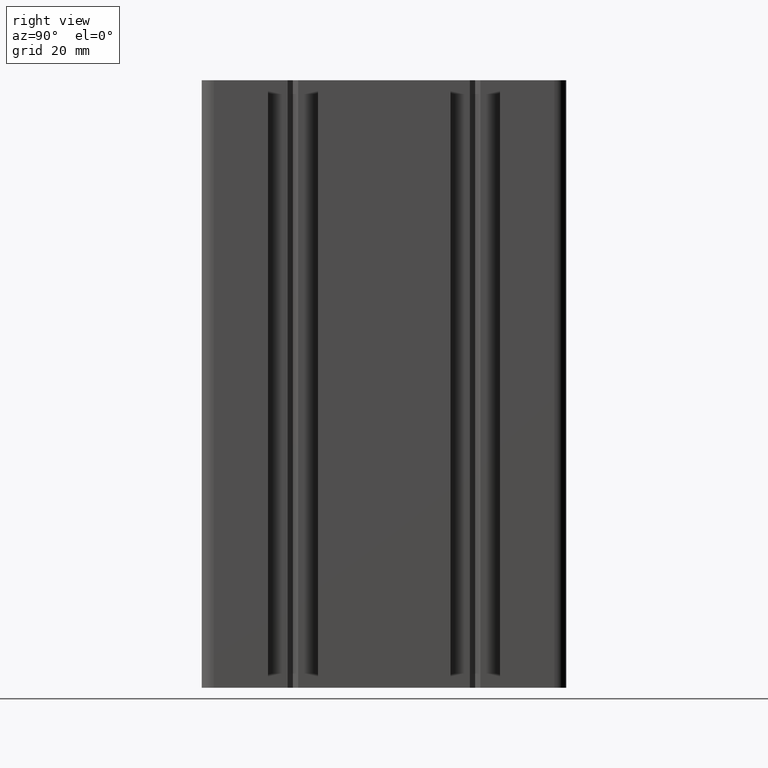
[diagram: clean part render]
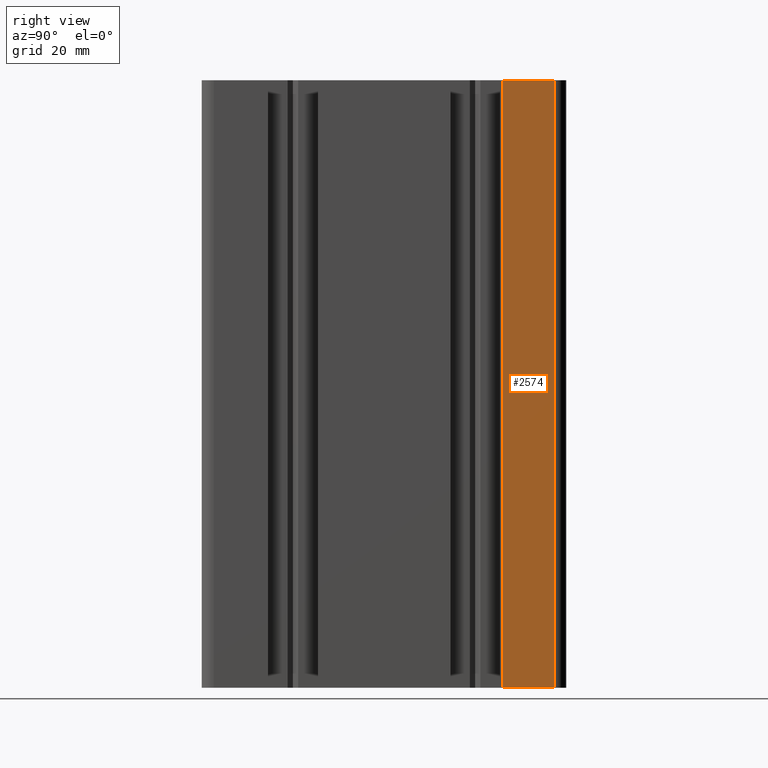
[diagram: same view with one face highlighted and labeled with its STEP entity id]
A machine part, right view. The second image highlights one B-rep face of the part: STEP entity #2574.
In plain terms, the highlighted planar face has unit normal (-1, 0, 0).
Its self-contained STEP definition (entity closure, byte-faithful):
#804 = VERTEX_POINT ( 'NONE', #4398 ) ;
#844 = EDGE_CURVE ( 'NONE', #804, #846, #4537, .T. ) ;
#846 = VERTEX_POINT ( 'NONE', #4532 ) ;
#1294 = EDGE_CURVE ( 'NONE', #1345, #1360, #5300, .T. ) ;
#1345 = VERTEX_POINT ( 'NONE', #5389 ) ;
#1360 = VERTEX_POINT ( 'NONE', #5414 ) ;
#2573 = EDGE_CURVE ( 'NONE', #846, #1360, #7375, .T. ) ;
#2574 = ADVANCED_FACE ( 'NONE', ( #7363 ), #7330, .F. ) ;
#2575 = ORIENTED_EDGE ( 'NONE', *, *, #1294, .T. ) ;
#2577 = ORIENTED_EDGE ( 'NONE', *, *, #844, .F. ) ;
#2587 = EDGE_LOOP ( 'NONE', ( #2575, #2589, #2577, #2624 ) ) ;
#2589 = ORIENTED_EDGE ( 'NONE', *, *, #2573, .F. ) ;
#2624 = ORIENTED_EDGE ( 'NONE', *, *, #2639, .T. ) ;
#2639 = EDGE_CURVE ( 'NONE', #804, #1345, #7480, .T. ) ;
#4398 = CARTESIAN_POINT ( 'NONE',  ( 15.00000000000000000, 19.50000000000001100, 100.0000000000000000 ) ) ;
#4532 = CARTESIAN_POINT ( 'NONE',  ( 15.00000000000001100, 27.99999999999998900, 100.0000000000000000 ) ) ;
#4534 = DIRECTION ( 'NONE',  ( 1.428595803745609100E-015, 1.000000000000000000, -0.0000000000000000000 ) ) ;
#4535 = VECTOR ( 'NONE', #4534, 1000.000000000000000 ) ;
#4536 = CARTESIAN_POINT ( 'NONE',  ( 15.00000000000001200, 27.99999999999998900, 100.0000000000000000 ) ) ;
#4537 = LINE ( 'NONE', #4536, #4535 ) ;
#5300 = LINE ( 'NONE', #5346, #5345 ) ;
#5344 = DIRECTION ( 'NONE',  ( 1.428595803745609100E-015, 1.000000000000000000, -0.0000000000000000000 ) ) ;
#5345 = VECTOR ( 'NONE', #5344, 1000.000000000000000 ) ;
#5346 = CARTESIAN_POINT ( 'NONE',  ( 15.00000000000001200, 27.99999999999998900, 0.0000000000000000000 ) ) ;
#5389 = CARTESIAN_POINT ( 'NONE',  ( 15.00000000000000000, 19.50000000000001100, 0.0000000000000000000 ) ) ;
#5414 = CARTESIAN_POINT ( 'NONE',  ( 15.00000000000001100, 27.99999999999998900, 0.0000000000000000000 ) ) ;
#7330 = PLANE ( 'NONE',  #7403 ) ;
#7359 = VECTOR ( 'NONE', #7401, 1000.000000000000000 ) ;
#7363 = FACE_OUTER_BOUND ( 'NONE', #2587, .T. ) ;
#7375 = LINE ( 'NONE', #7415, #7359 ) ;
#7396 = DIRECTION ( 'NONE',  ( -1.428595803745609100E-015, -1.000000000000000000, 0.0000000000000000000 ) ) ;
#7397 = DIRECTION ( 'NONE',  ( -1.000000000000000000, 1.428595803745609100E-015, 0.0000000000000000000 ) ) ;
#7401 = DIRECTION ( 'NONE',  ( -0.0000000000000000000, -0.0000000000000000000, -1.000000000000000000 ) ) ;
#7403 = AXIS2_PLACEMENT_3D ( 'NONE', #7412, #7397, #7396 ) ;
#7412 = CARTESIAN_POINT ( 'NONE',  ( 15.00000000000001200, 27.99999999999998900, 100.0000000000000000 ) ) ;
#7415 = CARTESIAN_POINT ( 'NONE',  ( 15.00000000000001100, 27.99999999999998900, 100.0000000000000000 ) ) ;
#7477 = DIRECTION ( 'NONE',  ( -0.0000000000000000000, -0.0000000000000000000, -1.000000000000000000 ) ) ;
#7478 = VECTOR ( 'NONE', #7477, 1000.000000000000000 ) ;
#7479 = CARTESIAN_POINT ( 'NONE',  ( 15.00000000000000000, 19.50000000000001100, 100.0000000000000000 ) ) ;
#7480 = LINE ( 'NONE', #7479, #7478 ) ;